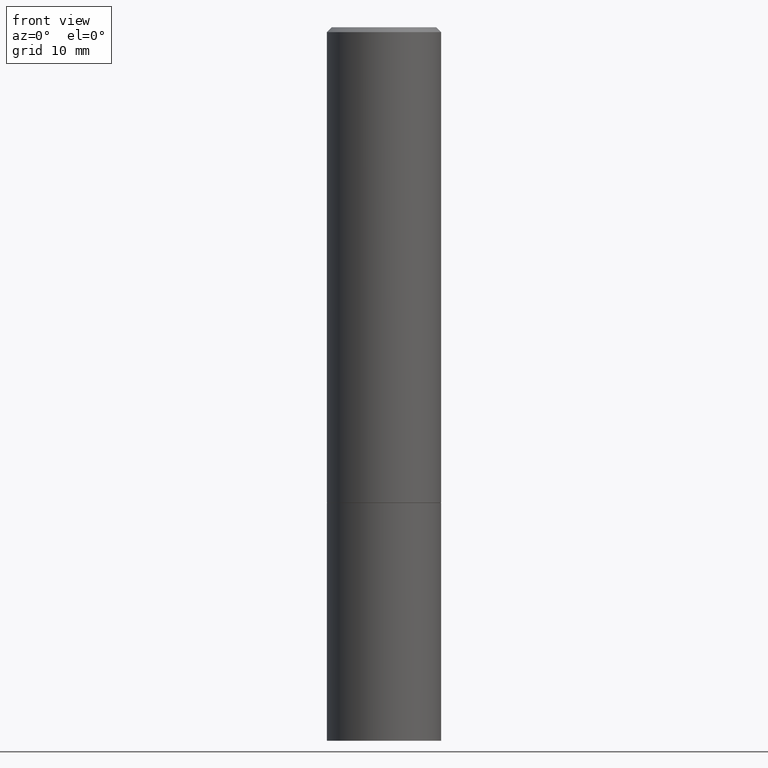
[diagram: clean part render]
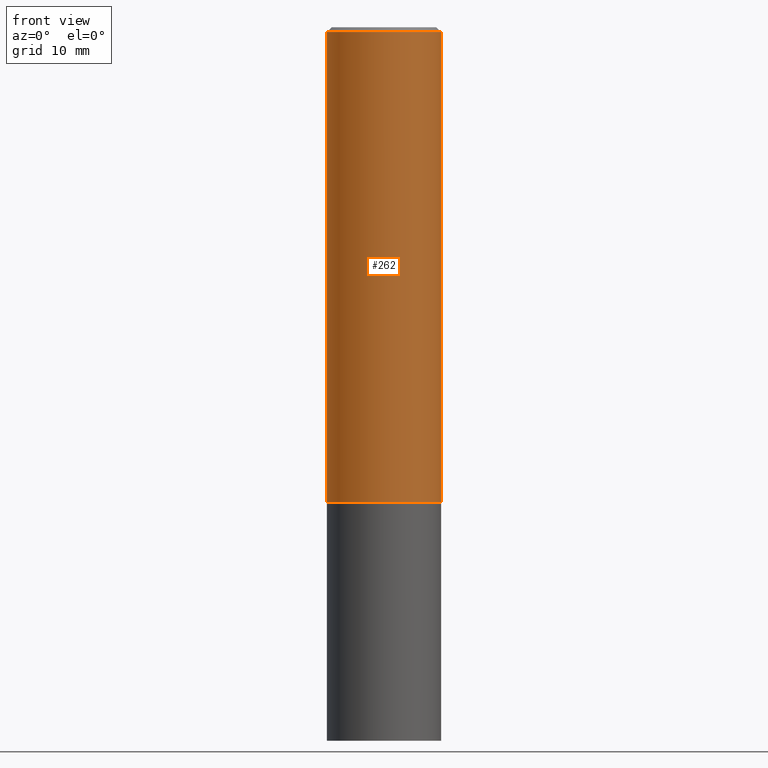
[diagram: same view with one face highlighted and labeled with its STEP entity id]
A machine part, front view. The second image highlights one B-rep face of the part: STEP entity #262.
In plain terms, the highlighted cylindrical surface (partial cylindrical patch) has radius 5.9995 mm, axis along (-0, 0, 1).
Its self-contained STEP definition (entity closure, byte-faithful):
#8 = EDGE_LOOP ( 'NONE', ( #173, #139, #252, #177 ) ) ;
#18 = DIRECTION ( 'NONE',  ( -2.445468806185136877E-29, 3.491481338843145188E-15, 1.000000000000000000 ) ) ;
#26 = CYLINDRICAL_SURFACE ( 'NONE', #34, 0.2361999999999998545 ) ;
#29 = DIRECTION ( 'NONE',  ( -2.445468806185136597E-29, 3.491481338843145583E-15, 1.000000000000000000 ) ) ;
#34 = AXIS2_PLACEMENT_3D ( 'NONE', #201, #138, #251 ) ;
#62 = AXIS2_PLACEMENT_3D ( 'NONE', #238, #212, #100 ) ;
#73 = DIRECTION ( 'NONE',  ( -2.445468806185136877E-29, 3.491481338843145188E-15, 1.000000000000000000 ) ) ;
#77 = CARTESIAN_POINT ( 'NONE',  ( 0.2361999999999999933, -8.518865318643383648E-15, -1.967499999999999805 ) ) ;
#81 = LINE ( 'NONE', #163, #253 ) ;
#83 = CARTESIAN_POINT ( 'NONE',  ( 0.2361999999999997157, -1.690279253850496996E-15, -0.02000000000000005593 ) ) ;
#100 = DIRECTION ( 'NONE',  ( 1.000000000000000000, -6.982962677686269077E-15, 0.000000000000000000 ) ) ;
#114 = VECTOR ( 'NONE', #73, 39.37007874015748143 ) ;
#124 = AXIS2_PLACEMENT_3D ( 'NONE', #281, #29, #194 ) ;
#127 = VERTEX_POINT ( 'NONE', #337 ) ;
#138 = DIRECTION ( 'NONE',  ( -2.445468806185136597E-29, 3.491481338843145583E-15, 1.000000000000000000 ) ) ;
#139 = ORIENTED_EDGE ( 'NONE', *, *, #354, .T. ) ;
#163 = CARTESIAN_POINT ( 'NONE',  ( 0.2361999999999998545, -1.649375784469495145E-15, 1.151752954442999387E-29 ) ) ;
#169 = CARTESIAN_POINT ( 'NONE',  ( -0.2361999999999998545, 1.678301941865355605E-15, -1.161852468318208056E-29 ) ) ;
#173 = ORIENTED_EDGE ( 'NONE', *, *, #298, .F. ) ;
#177 = ORIENTED_EDGE ( 'NONE', *, *, #310, .F. ) ;
#185 = VERTEX_POINT ( 'NONE', #77 ) ;
#194 = DIRECTION ( 'NONE',  ( 1.000000000000000000, -6.982962677686266711E-15, 0.000000000000000000 ) ) ;
#201 = CARTESIAN_POINT ( 'NONE',  ( 0.000000000000000000, 0.000000000000000000, 0.000000000000000000 ) ) ;
#210 = CIRCLE ( 'NONE', #62, 0.2361999999999999933 ) ;
#212 = DIRECTION ( 'NONE',  ( -2.445468806185136597E-29, 3.491481338843145583E-15, 1.000000000000000000 ) ) ;
#238 = CARTESIAN_POINT ( 'NONE',  ( 4.811459876169255671E-29, -6.869489534173887122E-15, -1.967499999999999805 ) ) ;
#240 = EDGE_CURVE ( 'NONE', #185, #350, #81, .T. ) ;
#242 = CARTESIAN_POINT ( 'NONE',  ( -0.2361999999999997157, 1.579546157692631255E-15, -0.02000000000000005593 ) ) ;
#249 = LINE ( 'NONE', #169, #114 ) ;
#251 = DIRECTION ( 'NONE',  ( 1.000000000000000000, -6.982962677686266711E-15, 4.876176775795935793E-29 ) ) ;
#252 = ORIENTED_EDGE ( 'NONE', *, *, #240, .T. ) ;
#253 = VECTOR ( 'NONE', #18, 39.37007874015748143 ) ;
#262 = ADVANCED_FACE ( 'NONE', ( #274 ), #26, .T. ) ;
#269 = CIRCLE ( 'NONE', #124, 0.2361999999999997157 ) ;
#274 = FACE_OUTER_BOUND ( 'NONE', #8, .T. ) ;
#281 = CARTESIAN_POINT ( 'NONE',  ( 4.890937612370287172E-31, -6.982962677686310098E-17, -0.02000000000000005593 ) ) ;
#298 = EDGE_CURVE ( 'NONE', #127, #301, #249, .T. ) ;
#301 = VERTEX_POINT ( 'NONE', #242 ) ;
#310 = EDGE_CURVE ( 'NONE', #301, #350, #269, .T. ) ;
#337 = CARTESIAN_POINT ( 'NONE',  ( -0.2362000000000000210, -1.791357638610016844E-15, -1.967499999999999805 ) ) ;
#350 = VERTEX_POINT ( 'NONE', #83 ) ;
#354 = EDGE_CURVE ( 'NONE', #127, #185, #210, .T. ) ;